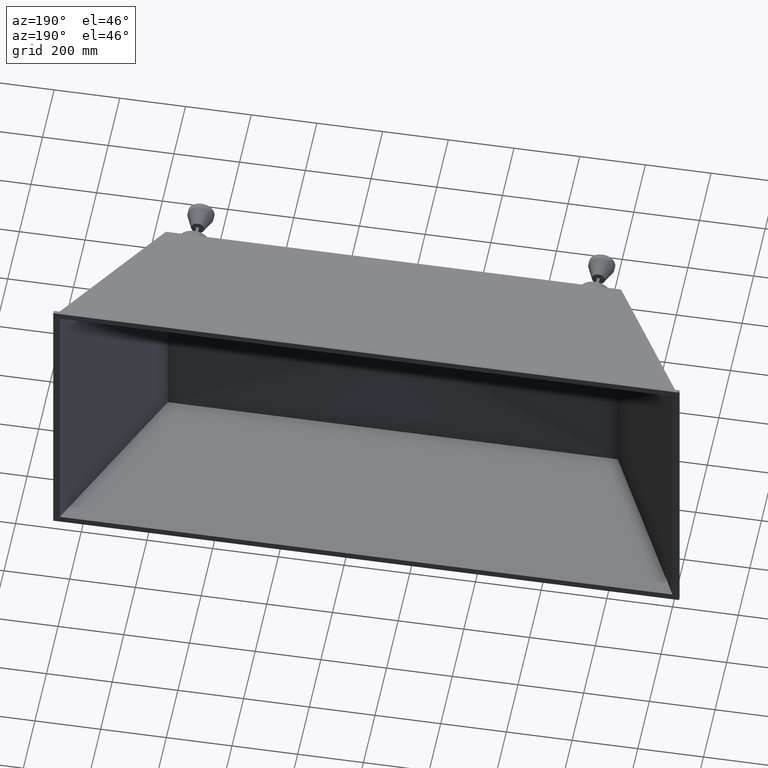
[diagram: clean part render]
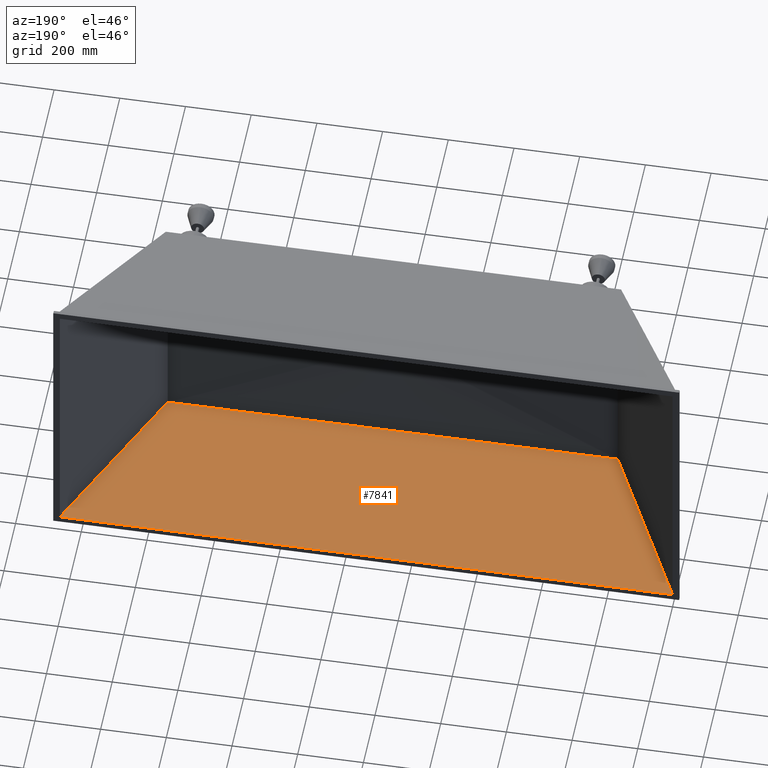
[diagram: same view with one face highlighted and labeled with its STEP entity id]
A machine part, auxiliary view. The second image highlights one B-rep face of the part: STEP entity #7841.
In plain terms, the highlighted planar face has unit normal (-0, -0.1564, -0.9877).
Its self-contained STEP definition (entity closure, byte-faithful):
#30 = LINE ( 'NONE', #5395, #6682 ) ;
#662 = LINE ( 'NONE', #2884, #5786 ) ;
#696 = EDGE_CURVE ( 'NONE', #4710, #6873, #662, .T. ) ;
#1042 = VECTOR ( 'NONE', #5153, 1000.000000000000000 ) ;
#1387 = CARTESIAN_POINT ( 'NONE',  ( 247.5000000000001700, -457.9999999999999400, -782.5000000000000000 ) ) ;
#1793 = AXIS2_PLACEMENT_3D ( 'NONE', #5074, #2899, #2723 ) ;
#2343 = FACE_OUTER_BOUND ( 'NONE', #4509, .T. ) ;
#2586 = CARTESIAN_POINT ( 'NONE',  ( 1864.999999999999800, 0.0000000000000000000, -855.0000000000000000 ) ) ;
#2629 = DIRECTION ( 'NONE',  ( -0.4708723949247478600, -0.8713517449516560200, 0.1379323177052294000 ) ) ;
#2723 = DIRECTION ( 'NONE',  ( 0.0000000000000000000, 0.9877016897800369200, -0.1563501583167089000 ) ) ;
#2731 = LINE ( 'NONE', #5345, #1042 ) ;
#2879 = CARTESIAN_POINT ( 'NONE',  ( 0.0000000000000000000, 0.0000000000000000000, -855.0000000000000000 ) ) ;
#2880 = DIRECTION ( 'NONE',  ( 0.4708723949247486900, -0.8713517449516555700, 0.1379323177052295700 ) ) ;
#2884 = CARTESIAN_POINT ( 'NONE',  ( 0.0000000000000000000, 0.0000000000000000000, -855.0000000000000000 ) ) ;
#2899 = DIRECTION ( 'NONE',  ( -8.004154433977888500E-017, -0.1563501583167089000, -0.9877016897800369200 ) ) ;
#2971 = ORIENTED_EDGE ( 'NONE', *, *, #7860, .F. ) ;
#3239 = PLANE ( 'NONE',  #1793 ) ;
#3774 = ORIENTED_EDGE ( 'NONE', *, *, #6659, .F. ) ;
#3890 = VECTOR ( 'NONE', #2629, 1000.000000000000200 ) ;
#4328 = EDGE_CURVE ( 'NONE', #7154, #4710, #2731, .T. ) ;
#4509 = EDGE_LOOP ( 'NONE', ( #2971, #5255, #8306, #3774 ) ) ;
#4710 = VERTEX_POINT ( 'NONE', #2879 ) ;
#4786 = VERTEX_POINT ( 'NONE', #6759 ) ;
#4865 = DIRECTION ( 'NONE',  ( -1.000000000000000000, 0.0000000000000000000, 8.103817697993843300E-017 ) ) ;
#5074 = CARTESIAN_POINT ( 'NONE',  ( 1617.500000000000200, -457.9999999999999400, -782.5000000000000000 ) ) ;
#5153 = DIRECTION ( 'NONE',  ( -1.000000000000000000, -0.0000000000000000000, -0.0000000000000000000 ) ) ;
#5255 = ORIENTED_EDGE ( 'NONE', *, *, #4328, .T. ) ;
#5345 = CARTESIAN_POINT ( 'NONE',  ( 0.0000000000000000000, 0.0000000000000000000, -855.0000000000000000 ) ) ;
#5395 = CARTESIAN_POINT ( 'NONE',  ( 1617.500000000000200, -457.9999999999999400, -782.5000000000000000 ) ) ;
#5744 = LINE ( 'NONE', #2586, #3890 ) ;
#5786 = VECTOR ( 'NONE', #2880, 1000.000000000000200 ) ;
#6659 = EDGE_CURVE ( 'NONE', #4786, #6873, #30, .T. ) ;
#6682 = VECTOR ( 'NONE', #4865, 1000.000000000000000 ) ;
#6759 = CARTESIAN_POINT ( 'NONE',  ( 1617.500000000000200, -457.9999999999999400, -782.5000000000000000 ) ) ;
#6873 = VERTEX_POINT ( 'NONE', #1387 ) ;
#7154 = VERTEX_POINT ( 'NONE', #8352 ) ;
#7841 = ADVANCED_FACE ( 'NONE', ( #2343 ), #3239, .F. ) ;
#7860 = EDGE_CURVE ( 'NONE', #7154, #4786, #5744, .T. ) ;
#8306 = ORIENTED_EDGE ( 'NONE', *, *, #696, .T. ) ;
#8352 = CARTESIAN_POINT ( 'NONE',  ( 1864.999999999998900, 0.0000000000000000000, -855.0000000000000000 ) ) ;